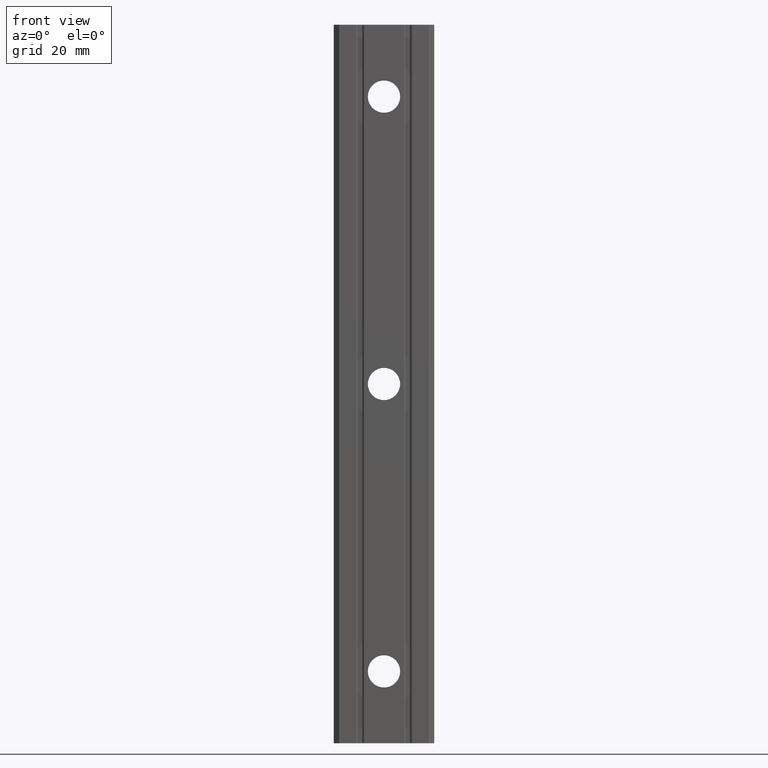
[diagram: clean part render]
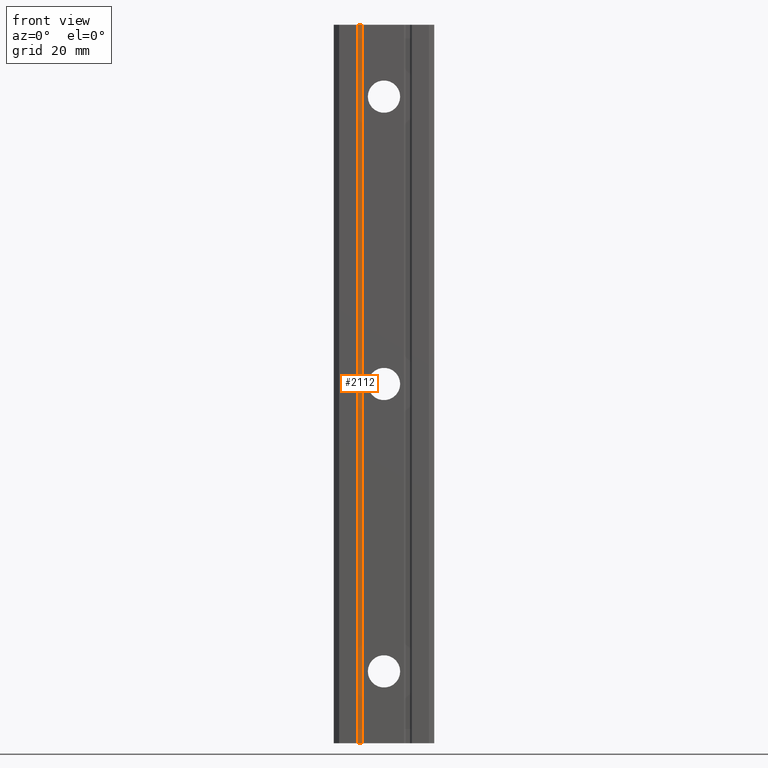
[diagram: same view with one face highlighted and labeled with its STEP entity id]
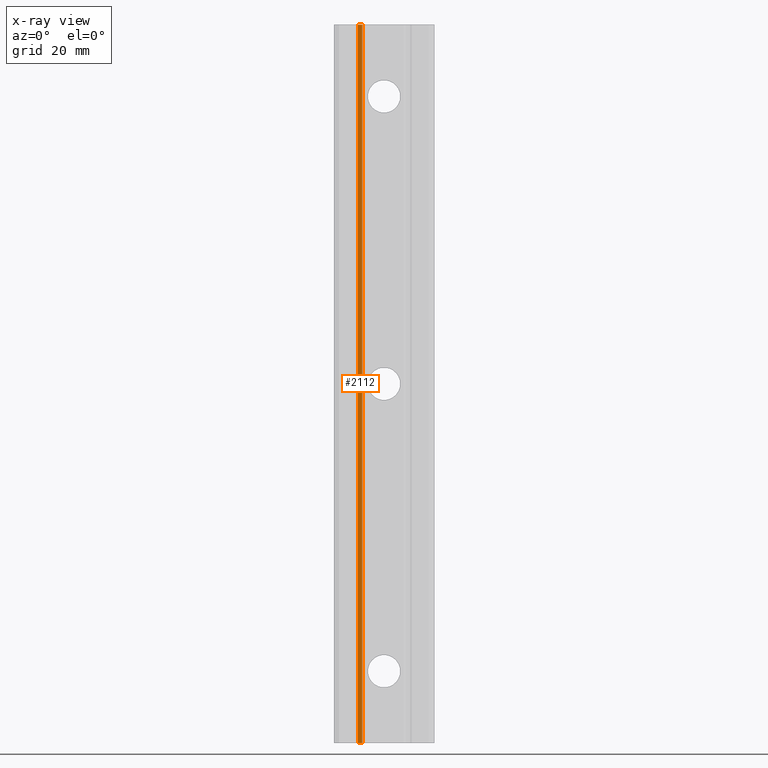
[diagram: x-ray of the same camera — body ghosted, the highlighted face saturated]
A machine part, front view. The second image highlights one B-rep face of the part: STEP entity #2112.
The next image is the same camera in x-ray: the body ghosted, the highlighted face saturated — about 0% of this face is hidden behind the body in this view.
In plain terms, the highlighted planar face has unit normal (0, -1, 0).
Its self-contained STEP definition (entity closure, byte-faithful):
#1465 = DIRECTION ( 'NONE',  ( 1.000000000000000000, 0.0000000000000000000, 0.0000000000000000000 ) ) ;
#1466 = VECTOR ( 'NONE', #1465, 1000.000000000000000 ) ;
#1467 = CARTESIAN_POINT ( 'NONE',  ( -7.250000000000000000, -25.50000000000000400, -100.0000000000000000 ) ) ;
#1468 = LINE ( 'NONE', #1467, #1466 ) ;
#1469 = DIRECTION ( 'NONE',  ( 0.0000000000000000000, 0.0000000000000000000, -1.000000000000000000 ) ) ;
#1470 = VECTOR ( 'NONE', #1469, 1000.000000000000000 ) ;
#1471 = CARTESIAN_POINT ( 'NONE',  ( -6.049999999999999800, -25.50000000000000400, -100.0000000000000000 ) ) ;
#1472 = LINE ( 'NONE', #1471, #1470 ) ;
#1476 = CARTESIAN_POINT ( 'NONE',  ( -6.050000000000000700, -25.50000000000000400, -100.0000000000000000 ) ) ;
#1478 = CARTESIAN_POINT ( 'NONE',  ( -7.250000000000008900, -25.49999999999999600, 100.0000000000000000 ) ) ;
#1479 = CARTESIAN_POINT ( 'NONE',  ( -7.250000000000008900, -25.49999999999999600, -100.0000000000000000 ) ) ;
#1559 = DIRECTION ( 'NONE',  ( 0.0000000000000000000, 0.0000000000000000000, -1.000000000000000000 ) ) ;
#1560 = DIRECTION ( 'NONE',  ( 0.0000000000000000000, -1.000000000000000000, 0.0000000000000000000 ) ) ;
#1561 = CARTESIAN_POINT ( 'NONE',  ( -7.250000000000000000, -25.50000000000000400, -100.0000000000000000 ) ) ;
#1562 = AXIS2_PLACEMENT_3D ( 'NONE', #1561, #1560, #1559 ) ;
#1563 = PLANE ( 'NONE',  #1562 ) ;
#1564 = FACE_OUTER_BOUND ( 'NONE', #2222, .T. ) ;
#1678 = DIRECTION ( 'NONE',  ( -1.000000000000000000, 0.0000000000000000000, 0.0000000000000000000 ) ) ;
#1679 = VECTOR ( 'NONE', #1678, 1000.000000000000000 ) ;
#1680 = CARTESIAN_POINT ( 'NONE',  ( -7.250000000000000000, -25.50000000000000400, 100.0000000000000000 ) ) ;
#1681 = LINE ( 'NONE', #1680, #1679 ) ;
#1754 = DIRECTION ( 'NONE',  ( 0.0000000000000000000, 0.0000000000000000000, 1.000000000000000000 ) ) ;
#1755 = VECTOR ( 'NONE', #1754, 1000.000000000000000 ) ;
#1756 = CARTESIAN_POINT ( 'NONE',  ( -7.250000000000034600, -25.49999999999996800, -100.0000000000000000 ) ) ;
#1757 = LINE ( 'NONE', #1756, #1755 ) ;
#1801 = CARTESIAN_POINT ( 'NONE',  ( -6.050000000000001600, -25.50000000000000400, 100.0000000000000000 ) ) ;
#2058 = VERTEX_POINT ( 'NONE', #1479 ) ;
#2059 = VERTEX_POINT ( 'NONE', #1478 ) ;
#2061 = VERTEX_POINT ( 'NONE', #1476 ) ;
#2062 = ORIENTED_EDGE ( 'NONE', *, *, #2068, .F. ) ;
#2068 = EDGE_CURVE ( 'NONE', #2261, #2061, #1472, .T. ) ;
#2069 = ORIENTED_EDGE ( 'NONE', *, *, #2070, .T. ) ;
#2070 = EDGE_CURVE ( 'NONE', #2058, #2061, #1468, .T. ) ;
#2112 = ADVANCED_FACE ( 'NONE', ( #1564 ), #1563, .T. ) ;
#2182 = EDGE_CURVE ( 'NONE', #2261, #2059, #1681, .T. ) ;
#2211 = EDGE_CURVE ( 'NONE', #2058, #2059, #1757, .T. ) ;
#2216 = ORIENTED_EDGE ( 'NONE', *, *, #2211, .F. ) ;
#2222 = EDGE_LOOP ( 'NONE', ( #2216, #2069, #2062, #2260 ) ) ;
#2260 = ORIENTED_EDGE ( 'NONE', *, *, #2182, .T. ) ;
#2261 = VERTEX_POINT ( 'NONE', #1801 ) ;